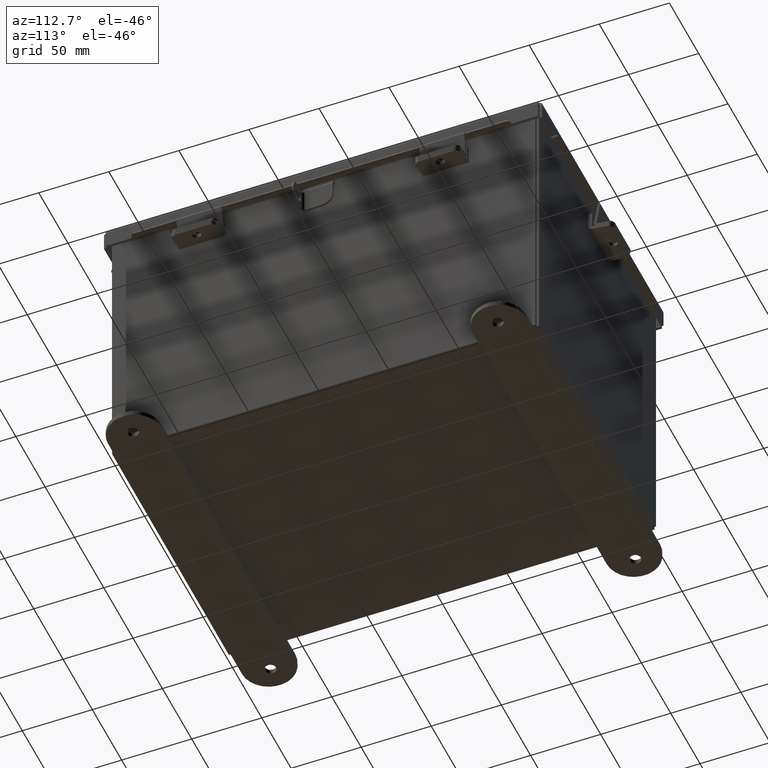
[diagram: clean part render]
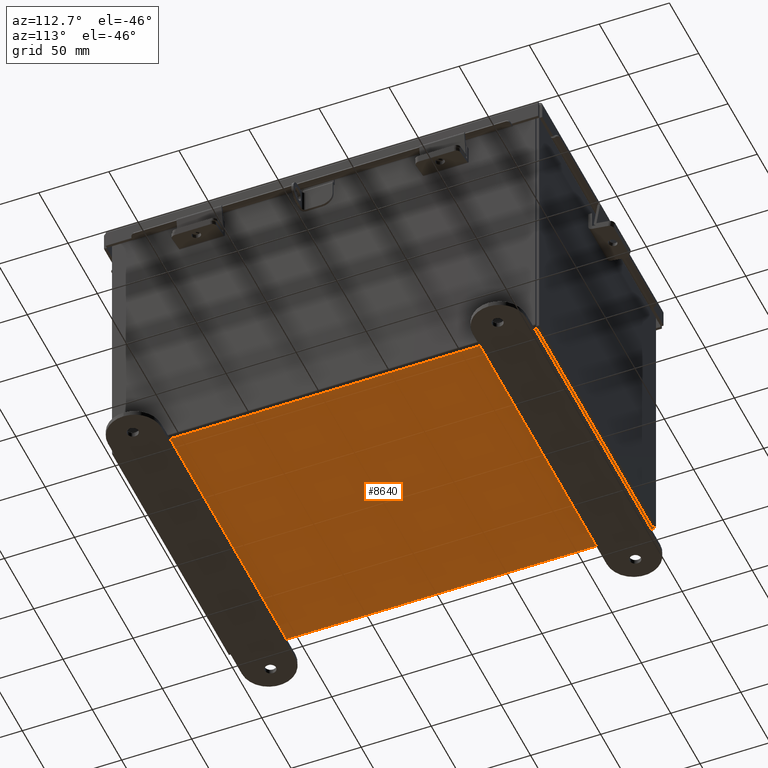
[diagram: same view with one face highlighted and labeled with its STEP entity id]
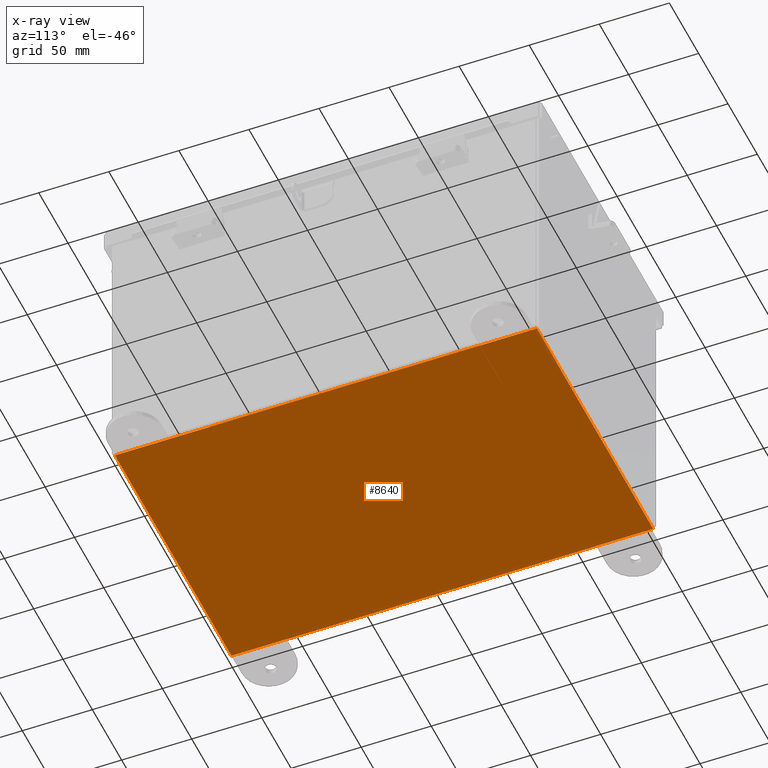
[diagram: x-ray of the same camera — body ghosted, the highlighted face saturated]
A machine part, auxiliary view. The second image highlights one B-rep face of the part: STEP entity #8640.
The next image is the same camera in x-ray: the body ghosted, the highlighted face saturated — about 0% of this face is hidden behind the body in this view.
In plain terms, the highlighted planar face has unit normal (0, 0, -1).
Its self-contained STEP definition (entity closure, byte-faithful):
#297 = LINE ( 'NONE', #5575, #12901 ) ;
#391 = CARTESIAN_POINT ( 'NONE',  ( -3.912299999999998800, -5.925300000000000000, -0.07469999999999918400 ) ) ;
#430 = LINE ( 'NONE', #3320, #6915 ) ;
#502 = VERTEX_POINT ( 'NONE', #10009 ) ;
#1055 = AXIS2_PLACEMENT_3D ( 'NONE', #14543, #14595, #7279 ) ;
#1071 = VERTEX_POINT ( 'NONE', #15616 ) ;
#1135 = EDGE_LOOP ( 'NONE', ( #14076, #7424, #13665, #14679 ) ) ;
#1750 = VERTEX_POINT ( 'NONE', #4331 ) ;
#2364 = LINE ( 'NONE', #4660, #8094 ) ;
#2729 = VECTOR ( 'NONE', #7701, 39.37007874015748100 ) ;
#3320 = CARTESIAN_POINT ( 'NONE',  ( -3.999999999999998700, 5.925300000000000000, -0.07470000000000000300 ) ) ;
#3905 = CARTESIAN_POINT ( 'NONE',  ( -3.912299999999998800, -5.925299999999999100, -0.07469999999999918400 ) ) ;
#4331 = CARTESIAN_POINT ( 'NONE',  ( 3.912300000000000600, 5.925299999999997300, -0.07469999999999994700 ) ) ;
#4660 = CARTESIAN_POINT ( 'NONE',  ( 3.912300000000000600, 5.925300000000000000, -0.07469999999999994700 ) ) ;
#5575 = CARTESIAN_POINT ( 'NONE',  ( -3.999999999999998700, -5.925300000000000000, -0.07470000000000000300 ) ) ;
#5873 = DIRECTION ( 'NONE',  ( -0.0000000000000000000, -1.000000000000000000, -0.0000000000000000000 ) ) ;
#6026 = PLANE ( 'NONE',  #1055 ) ;
#6915 = VECTOR ( 'NONE', #6988, 39.37007874015748100 ) ;
#6988 = DIRECTION ( 'NONE',  ( -1.000000000000000000, -0.0000000000000000000, -0.0000000000000000000 ) ) ;
#7279 = DIRECTION ( 'NONE',  ( -1.000000000000000000, 0.0000000000000000000, -0.0000000000000000000 ) ) ;
#7424 = ORIENTED_EDGE ( 'NONE', *, *, #12561, .T. ) ;
#7701 = DIRECTION ( 'NONE',  ( -0.0000000000000000000, 1.000000000000000000, -8.208677865577646300E-017 ) ) ;
#7747 = FACE_OUTER_BOUND ( 'NONE', #1135, .T. ) ;
#8094 = VECTOR ( 'NONE', #5873, 39.37007874015748100 ) ;
#8640 = ADVANCED_FACE ( 'NONE', ( #7747 ), #6026, .T. ) ;
#10009 = CARTESIAN_POINT ( 'NONE',  ( -3.912299999999998800, 5.925300000000000000, -0.07470000000000000300 ) ) ;
#11372 = EDGE_CURVE ( 'NONE', #15566, #1071, #297, .T. ) ;
#12465 = LINE ( 'NONE', #391, #2729 ) ;
#12561 = EDGE_CURVE ( 'NONE', #1750, #1071, #2364, .T. ) ;
#12880 = DIRECTION ( 'NONE',  ( 1.000000000000000000, 0.0000000000000000000, 0.0000000000000000000 ) ) ;
#12901 = VECTOR ( 'NONE', #12880, 39.37007874015748100 ) ;
#13665 = ORIENTED_EDGE ( 'NONE', *, *, #11372, .F. ) ;
#14076 = ORIENTED_EDGE ( 'NONE', *, *, #15212, .F. ) ;
#14543 = CARTESIAN_POINT ( 'NONE',  ( 0.0000000000000000000, 0.0000000000000000000, -0.07470000000000000300 ) ) ;
#14595 = DIRECTION ( 'NONE',  ( 0.0000000000000000000, 0.0000000000000000000, -1.000000000000000000 ) ) ;
#14679 = ORIENTED_EDGE ( 'NONE', *, *, #15026, .T. ) ;
#15026 = EDGE_CURVE ( 'NONE', #15566, #502, #12465, .T. ) ;
#15212 = EDGE_CURVE ( 'NONE', #1750, #502, #430, .T. ) ;
#15566 = VERTEX_POINT ( 'NONE', #3905 ) ;
#15616 = CARTESIAN_POINT ( 'NONE',  ( 3.912300000000000600, -5.925300000000000000, -0.07470000000000000300 ) ) ;